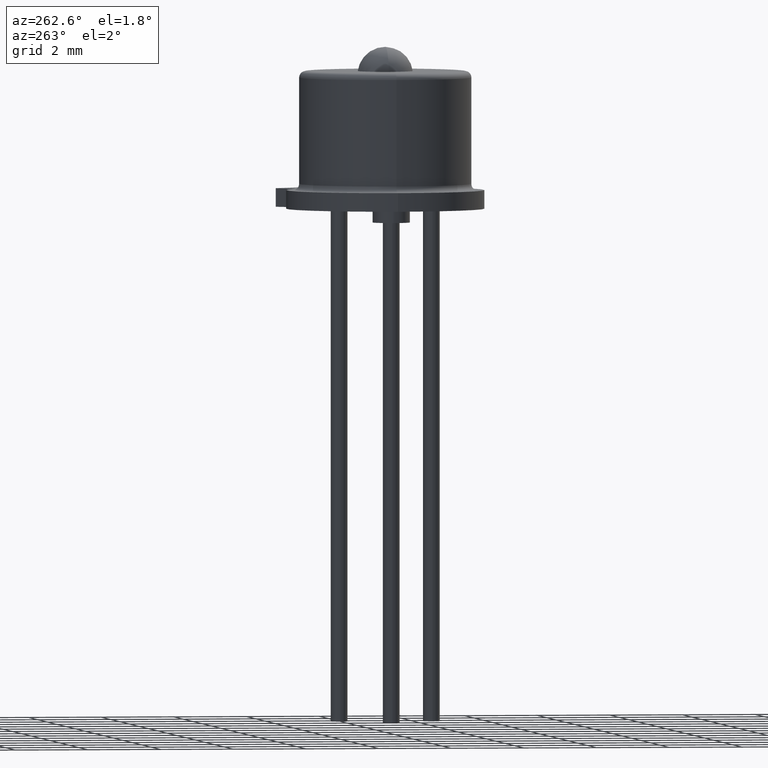
[diagram: clean part render]
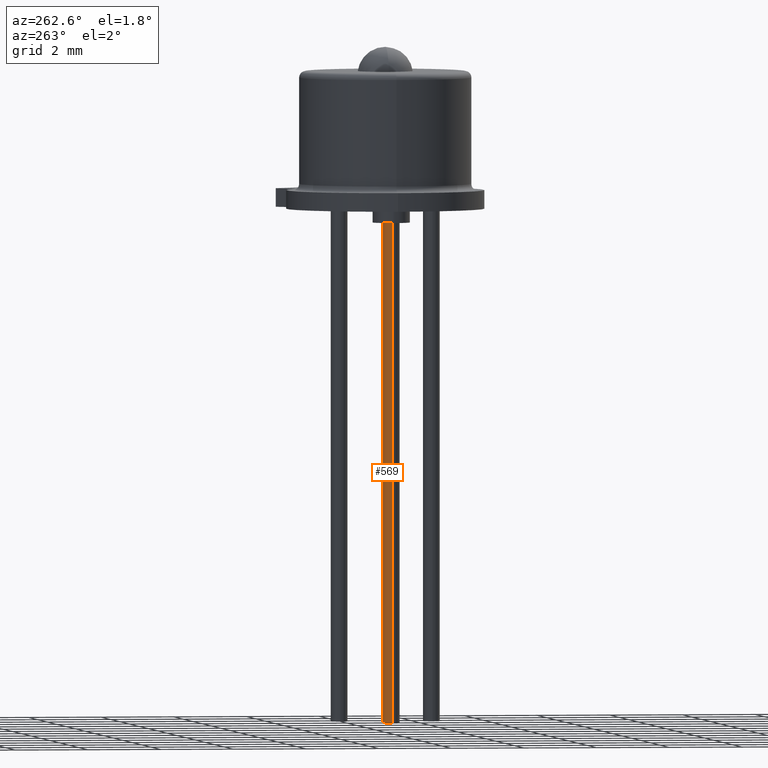
[diagram: same view with one face highlighted and labeled with its STEP entity id]
A machine part, auxiliary view. The second image highlights one B-rep face of the part: STEP entity #569.
In plain terms, the highlighted cylindrical surface (edge-blend (fillet) strip) has radius 0.2286 mm, axis along (-0, -0, 1).
Its self-contained STEP definition (entity closure, byte-faithful):
#156 = VERTEX_POINT ( 'NONE', #1496 ) ;
#157 = VERTEX_POINT ( 'NONE', #1497 ) ;
#158 = VERTEX_POINT ( 'NONE', #1507 ) ;
#160 = VERTEX_POINT ( 'NONE', #1513 ) ;
#207 = EDGE_LOOP ( 'NONE', ( #1490, #1484, #1483, #1488 ) ) ;
#417 = DIRECTION ( 'NONE',  ( 1.000000000000000000, 0.0000000000000000000, 0.0000000000000000000 ) ) ;
#427 = CARTESIAN_POINT ( 'NONE',  ( -0.04999999999999991300, -9.390727478220904200E-017, -0.5510000000000000500 ) ) ;
#428 = DIRECTION ( 'NONE',  ( -0.0000000000000000000, -0.0000000000000000000, 1.000000000000000000 ) ) ;
#569 = ADVANCED_FACE ( 'NONE', ( #759 ), #761, .T. ) ;
#636 = EDGE_CURVE ( 'NONE', #157, #156, #1310, .T. ) ;
#637 = EDGE_CURVE ( 'NONE', #157, #158, #1311, .T. ) ;
#638 = EDGE_CURVE ( 'NONE', #158, #160, #1302, .T. ) ;
#639 = EDGE_CURVE ( 'NONE', #156, #160, #1314, .T. ) ;
#725 = AXIS2_PLACEMENT_3D ( 'NONE', #427, #428, #417 ) ;
#759 = FACE_OUTER_BOUND ( 'NONE', #207, .T. ) ;
#761 = CYLINDRICAL_SURFACE ( 'NONE', #725, 0.009000000000000001100 ) ;
#963 = AXIS2_PLACEMENT_3D ( 'NONE', #1191, #1192, #1193 ) ;
#1185 = CARTESIAN_POINT ( 'NONE',  ( -0.05899999999999991400, -9.280509266297642700E-017, -0.5510000000000000500 ) ) ;
#1186 = DIRECTION ( 'NONE',  ( -0.0000000000000000000, -0.0000000000000000000, 1.000000000000000000 ) ) ;
#1190 = DIRECTION ( 'NONE',  ( -0.0000000000000000000, -0.0000000000000000000, 1.000000000000000000 ) ) ;
#1191 = CARTESIAN_POINT ( 'NONE',  ( -0.04999999999999991300, -9.390727478220904200E-017, -0.5510000000000000500 ) ) ;
#1192 = DIRECTION ( 'NONE',  ( -0.0000000000000000000, -0.0000000000000000000, -1.000000000000000000 ) ) ;
#1193 = DIRECTION ( 'NONE',  ( 1.000000000000000000, 0.0000000000000000000, 0.0000000000000000000 ) ) ;
#1194 = CARTESIAN_POINT ( 'NONE',  ( -0.04099999999999991200, -9.390727478220904200E-017, -0.5510000000000000500 ) ) ;
#1196 = CARTESIAN_POINT ( 'NONE',  ( -0.04999999999999991300, -9.390727478220904200E-017, -0.01331299999999999300 ) ) ;
#1197 = DIRECTION ( 'NONE',  ( 0.0000000000000000000, 0.0000000000000000000, -1.000000000000000000 ) ) ;
#1198 = DIRECTION ( 'NONE',  ( -1.000000000000000000, 0.0000000000000000000, 0.0000000000000000000 ) ) ;
#1302 = CIRCLE ( 'NONE', #1351, 0.009000000000000001100 ) ;
#1310 = CIRCLE ( 'NONE', #963, 0.009000000000000001100 ) ;
#1311 = LINE ( 'NONE', #1185, #1313 ) ;
#1313 = VECTOR ( 'NONE', #1186, 39.37007874015748100 ) ;
#1314 = LINE ( 'NONE', #1194, #1316 ) ;
#1316 = VECTOR ( 'NONE', #1190, 39.37007874015748100 ) ;
#1351 = AXIS2_PLACEMENT_3D ( 'NONE', #1196, #1197, #1198 ) ;
#1483 = ORIENTED_EDGE ( 'NONE', *, *, #638, .T. ) ;
#1484 = ORIENTED_EDGE ( 'NONE', *, *, #637, .T. ) ;
#1488 = ORIENTED_EDGE ( 'NONE', *, *, #639, .F. ) ;
#1490 = ORIENTED_EDGE ( 'NONE', *, *, #636, .F. ) ;
#1496 = CARTESIAN_POINT ( 'NONE',  ( -0.04099999999999991200, -9.390727478220904200E-017, -0.5510000000000000500 ) ) ;
#1497 = CARTESIAN_POINT ( 'NONE',  ( -0.05899999999999991400, -9.280509266297642700E-017, -0.5510000000000000500 ) ) ;
#1507 = CARTESIAN_POINT ( 'NONE',  ( -0.05899999999999991400, -9.280509266297642700E-017, -0.01331299999999999300 ) ) ;
#1513 = CARTESIAN_POINT ( 'NONE',  ( -0.04099999999999991200, -9.390727478220904200E-017, -0.01331299999999999300 ) ) ;